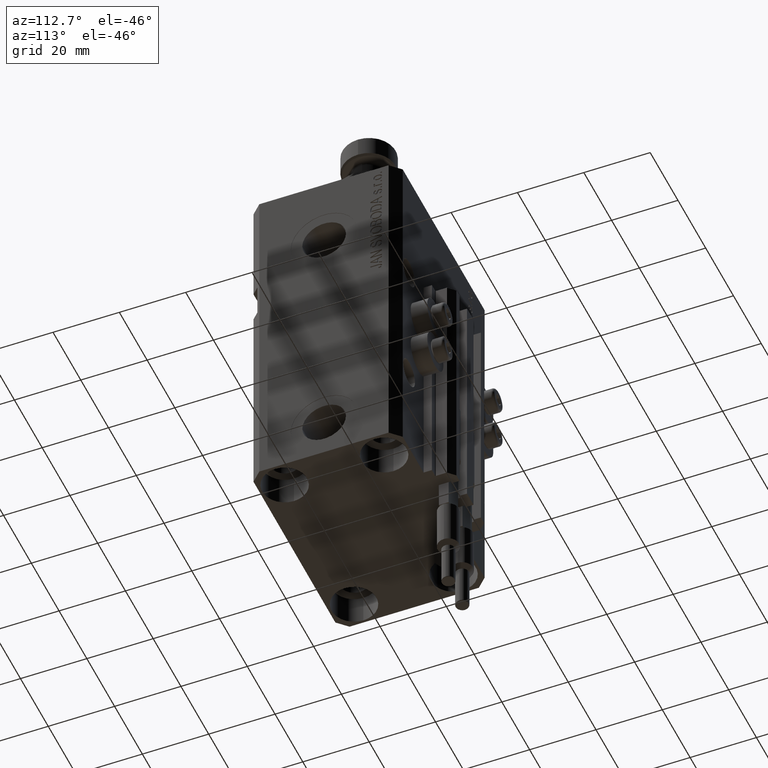
[diagram: clean part render]
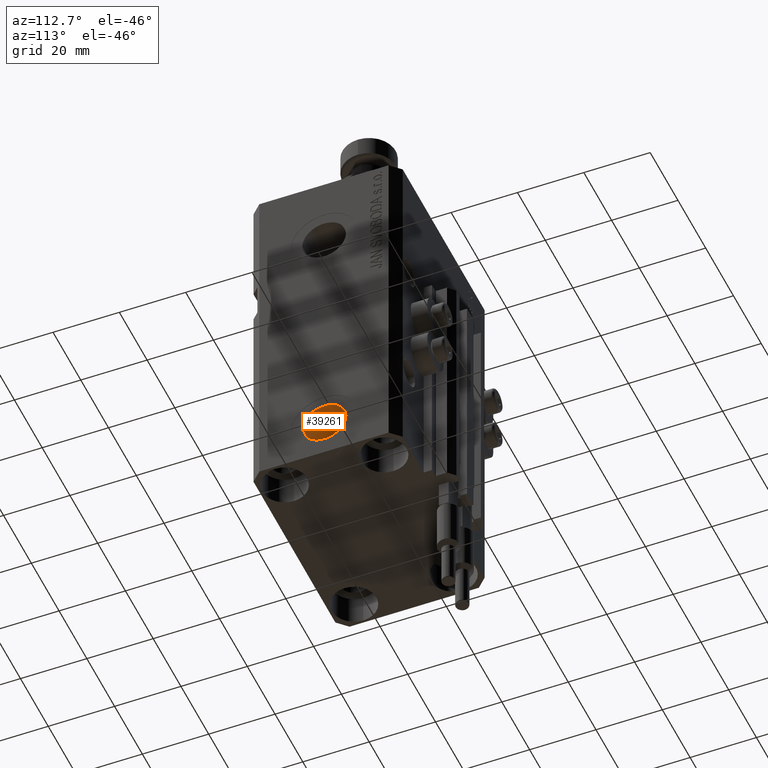
[diagram: same view with one face highlighted and labeled with its STEP entity id]
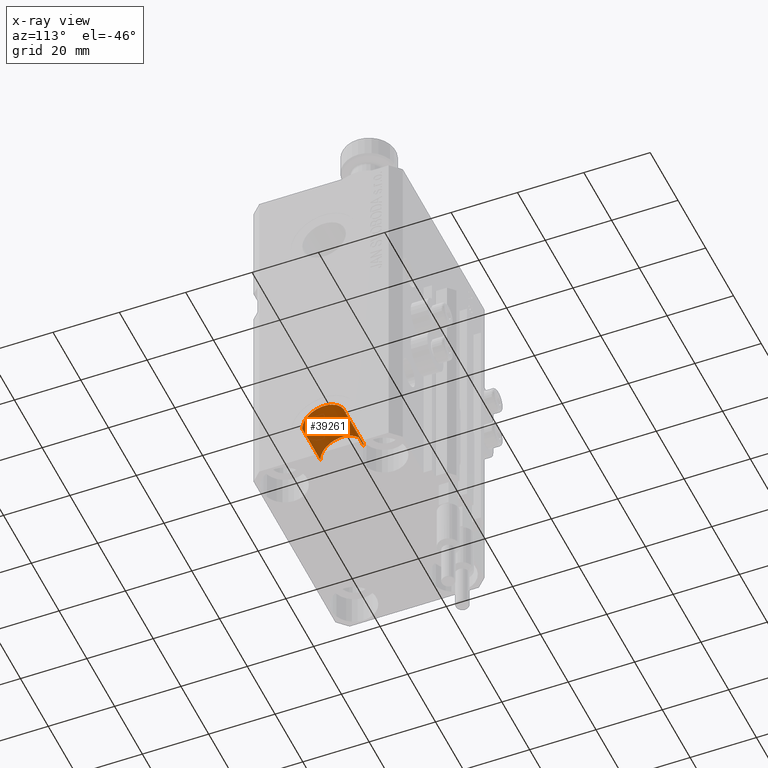
[diagram: x-ray of the same camera — body ghosted, the highlighted face saturated]
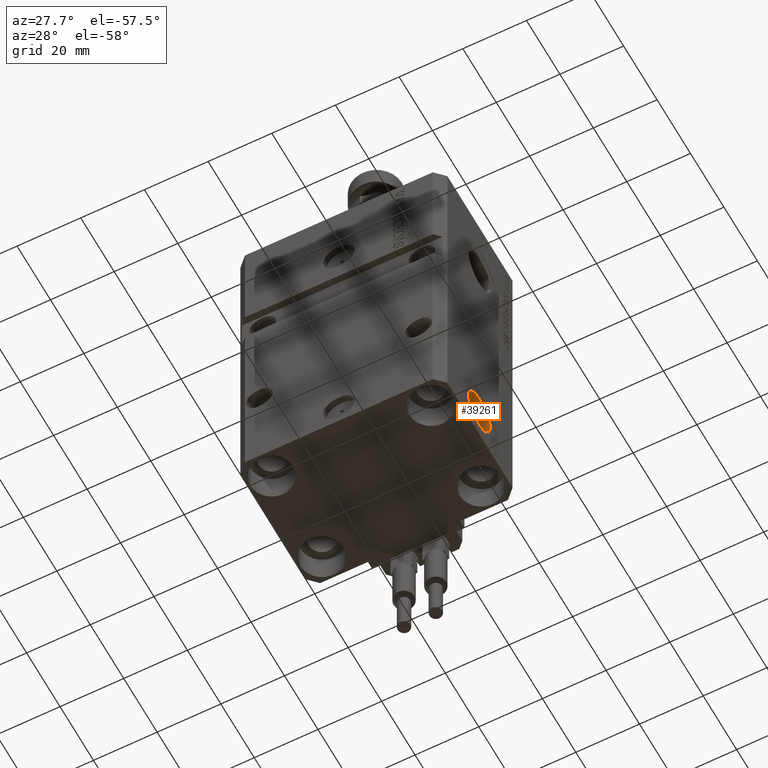
[diagram: same view with one face highlighted and labeled with its STEP entity id]
A machine part, auxiliary view. The second image highlights one B-rep face of the part: STEP entity #39261.
The next image is the same camera in x-ray: the body ghosted, the highlighted face saturated — about 0% of this face is hidden behind the body in this view.
A second angle (auxiliary view) of the same face is appended — the face is thin or edge-on in the first view.
In plain terms, the highlighted cylindrical surface (edge-blend (fillet) strip) has radius 6.58 mm, axis along (1, -0, 0).
Its self-contained STEP definition (entity closure, byte-faithful):
#179 = DIRECTION ( 'NONE',  ( 1.000000000000000000, -1.334402673828349292E-14, -0.000000000000000000 ) ) ;
#2145 = EDGE_CURVE ( 'NONE', #8343, #8617, #46169, .T. ) ;
#3875 = AXIS2_PLACEMENT_3D ( 'NONE', #38119, #40919, #22130 ) ;
#6029 = CARTESIAN_POINT ( 'NONE',  ( 19.39999999999686153, 6.579999999999729177, -95.00000000000000000 ) ) ;
#8343 = VERTEX_POINT ( 'NONE', #6029 ) ;
#8617 = VERTEX_POINT ( 'NONE', #11833 ) ;
#11059 = DIRECTION ( 'NONE',  ( 1.000000000000000000, -1.334402673828349134E-14, 0.000000000000000000 ) ) ;
#11602 = EDGE_CURVE ( 'NONE', #8343, #46062, #30928, .T. ) ;
#11833 = CARTESIAN_POINT ( 'NONE',  ( 19.39999999999668745, -6.580000000000246096, -95.00000000000000000 ) ) ;
#13812 = ORIENTED_EDGE ( 'NONE', *, *, #34368, .F. ) ;
#16777 = CARTESIAN_POINT ( 'NONE',  ( 19.39999999999668745, -6.580000000000246096, -95.00000000000000000 ) ) ;
#17217 = CARTESIAN_POINT ( 'NONE',  ( 32.39999999999686509, 6.579999999999555982, -95.00000000000000000 ) ) ;
#22130 = DIRECTION ( 'NONE',  ( 1.370906090437600963E-14, 1.000000000000000000, 0.000000000000000000 ) ) ;
#22497 = DIRECTION ( 'NONE',  ( 1.318178933113077855E-14, 1.000000000000000000, 0.000000000000000000 ) ) ;
#23423 = EDGE_LOOP ( 'NONE', ( #13812, #46138, #44349, #25439 ) ) ;
#25160 = DIRECTION ( 'NONE',  ( 1.000000000000000000, -1.334402673828349292E-14, -0.000000000000000000 ) ) ;
#25439 = ORIENTED_EDGE ( 'NONE', *, *, #26343, .T. ) ;
#25845 = CARTESIAN_POINT ( 'NONE',  ( 32.39999999999668034, -6.580000000000419291, -95.00000000000000000 ) ) ;
#26343 = EDGE_CURVE ( 'NONE', #46062, #27946, #38731, .T. ) ;
#26365 = FACE_OUTER_BOUND ( 'NONE', #23423, .T. ) ;
#26999 = VECTOR ( 'NONE', #27115, 1000.000000000000000 ) ;
#27115 = DIRECTION ( 'NONE',  ( 1.000000000000000000, -1.334402673828349292E-14, -0.000000000000000000 ) ) ;
#27946 = VERTEX_POINT ( 'NONE', #25845 ) ;
#28469 = LINE ( 'NONE', #16777, #31134 ) ;
#30782 = AXIS2_PLACEMENT_3D ( 'NONE', #34179, #11059, #22497 ) ;
#30928 = LINE ( 'NONE', #46400, #26999 ) ;
#31134 = VECTOR ( 'NONE', #25160, 1000.000000000000000 ) ;
#34179 = CARTESIAN_POINT ( 'NONE',  ( 19.39999999999677271, -2.588741187226566333E-13, -95.00000000000000000 ) ) ;
#34368 = EDGE_CURVE ( 'NONE', #8617, #27946, #28469, .T. ) ;
#34740 = CYLINDRICAL_SURFACE ( 'NONE', #38488, 6.579999999999987637 ) ;
#38119 = CARTESIAN_POINT ( 'NONE',  ( 32.39999999999677271, -4.323464663203420381E-13, -95.00000000000000000 ) ) ;
#38488 = AXIS2_PLACEMENT_3D ( 'NONE', #45389, #179, #41836 ) ;
#38731 = CIRCLE ( 'NONE', #3875, 6.579999999999987637 ) ;
#39261 = ADVANCED_FACE ( 'NONE', ( #26365 ), #34740, .F. ) ;
#40919 = DIRECTION ( 'NONE',  ( 1.000000000000000000, -1.334402673828349134E-14, 0.000000000000000000 ) ) ;
#41836 = DIRECTION ( 'NONE',  ( 1.318178933113077855E-14, 1.000000000000000000, 0.000000000000000000 ) ) ;
#44349 = ORIENTED_EDGE ( 'NONE', *, *, #11602, .T. ) ;
#45389 = CARTESIAN_POINT ( 'NONE',  ( 19.39999999999677271, -2.588741187226566333E-13, -95.00000000000000000 ) ) ;
#46062 = VERTEX_POINT ( 'NONE', #17217 ) ;
#46138 = ORIENTED_EDGE ( 'NONE', *, *, #2145, .F. ) ;
#46169 = CIRCLE ( 'NONE', #30782, 6.579999999999987637 ) ;
#46400 = CARTESIAN_POINT ( 'NONE',  ( 19.39999999999686153, 6.579999999999729177, -95.00000000000000000 ) ) ;